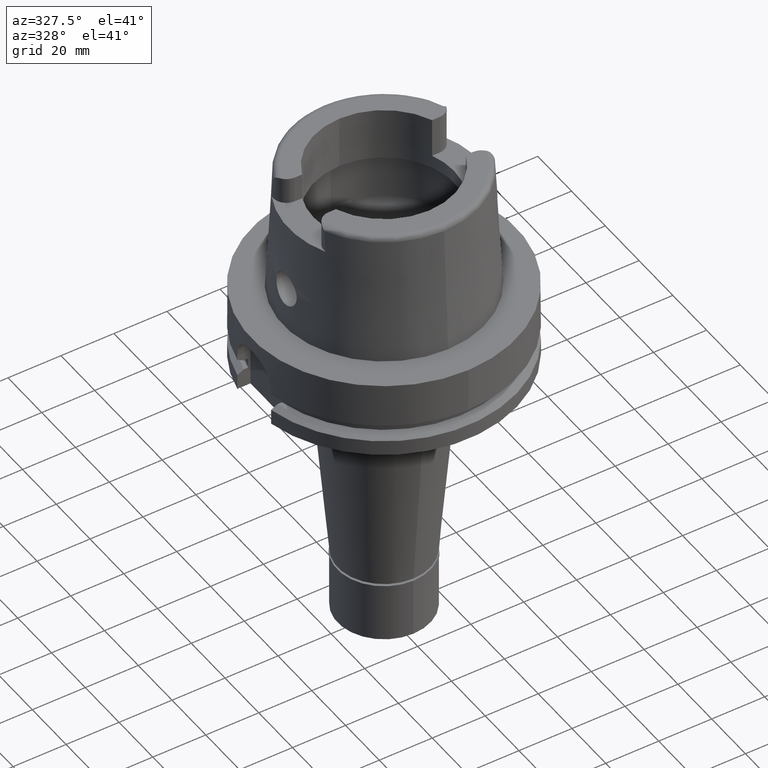
[diagram: clean part render]
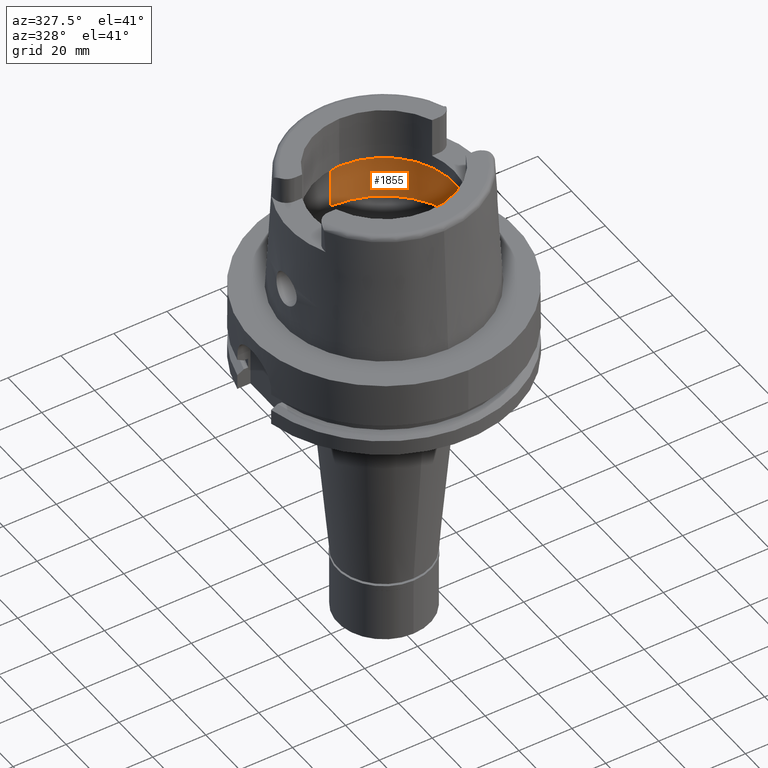
[diagram: same view with one face highlighted and labeled with its STEP entity id]
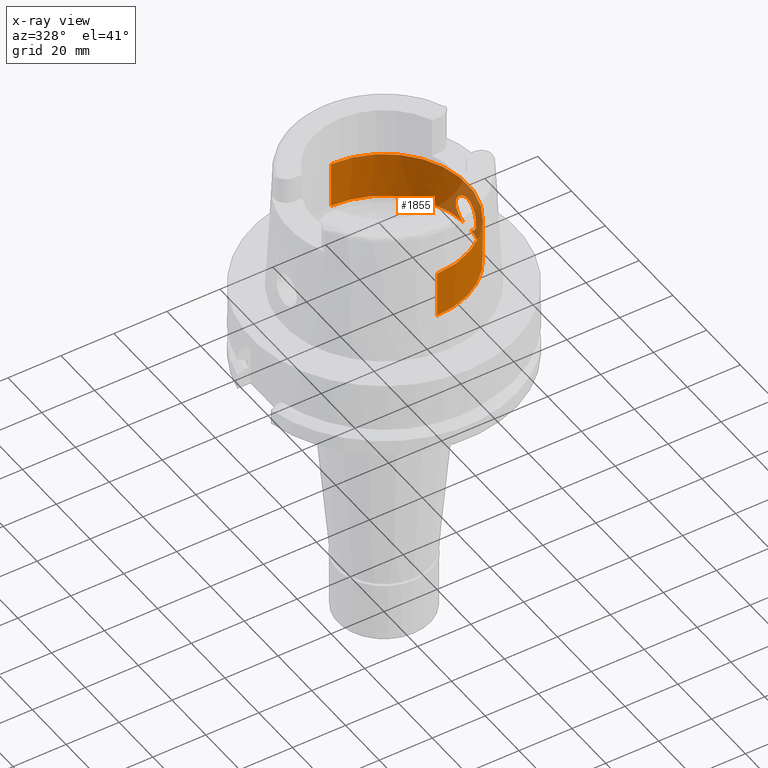
[diagram: x-ray of the same camera — body ghosted, the highlighted face saturated]
A machine part, auxiliary view. The second image highlights one B-rep face of the part: STEP entity #1855.
The next image is the same camera in x-ray: the body ghosted, the highlighted face saturated — about 9% of this face is hidden behind the body in this view.
In plain terms, the highlighted cylindrical surface (partial cylindrical patch) has radius 31.5 mm, axis along (0, 0, 1).
Its self-contained STEP definition (entity closure, byte-faithful):
#3 = CARTESIAN_POINT ( 'NONE',  ( 31.17031119197526223, -4.545501086012808223, 18.91645000060465520 ) ) ;
#8 = CIRCLE ( 'NONE', #812, 31.50000000000000000 ) ;
#27 = CARTESIAN_POINT ( 'NONE',  ( 30.99215120401441226, -5.635695294002070810, 12.91319782179499143 ) ) ;
#29 = CARTESIAN_POINT ( 'NONE',  ( 31.27262970898830829, 3.777914963720333752, 19.66127384653621135 ) ) ;
#57 = CARTESIAN_POINT ( 'NONE',  ( 30.94472926339530261, -5.888557821736129405, 16.15138554890312506 ) ) ;
#60 = CARTESIAN_POINT ( 'NONE',  ( 31.34095733376927129, 3.161114423872149803, 20.10315793481018076 ) ) ;
#81 = CARTESIAN_POINT ( 'NONE',  ( 31.17413923485180760, -4.519162591770683690, 18.94680684842914431 ) ) ;
#83 = CARTESIAN_POINT ( 'NONE',  ( 31.44082095187959069, 1.928438204758639918, 20.68172307507292729 ) ) ;
#107 = CARTESIAN_POINT ( 'NONE',  ( 31.04577119502284432, -5.330223052384129190, 12.24523325699272291 ) ) ;
#109 = CARTESIAN_POINT ( 'NONE',  ( 30.93385035905123459, 5.945437057969418682, 14.19243826237474870 ) ) ;
#134 = CIRCLE ( 'NONE', #3307, 31.49999999999998934 ) ;
#143 = CARTESIAN_POINT ( 'NONE',  ( 30.94815008401284473, 5.870543718424765522, 16.23968043950892337 ) ) ;
#169 = EDGE_CURVE ( 'NONE', #1660, #5512, #3357, .T. ) ;
#172 = CARTESIAN_POINT ( 'NONE',  ( 31.22689124291107277, 4.138834973746982726, 10.65600749535185976 ) ) ;
#218 = CARTESIAN_POINT ( 'NONE',  ( 31.43293454810337906, -2.052824328815974209, 20.63795588805198378 ) ) ;
#226 = CARTESIAN_POINT ( 'NONE',  ( 31.27380116047299197, 3.781254425368883343, 10.32171892724830720 ) ) ;
#256 = CARTESIAN_POINT ( 'NONE',  ( 31.03366758779950985, 5.400350290465067538, 12.38468889613174184 ) ) ;
#283 = CARTESIAN_POINT ( 'NONE',  ( 31.22259808345871335, 4.171282953279622951, 10.68700173368331541 ) ) ;
#324 = CIRCLE ( 'NONE', #4218, 31.50000000000000000 ) ;
#337 = B_SPLINE_CURVE_WITH_KNOTS ( 'NONE', 3,
 ( #2281, #2693, #1381, #2663, #452, #2175, #5320, #1322, #83, #2602, #2229, #3058, #4780, #3107, #3957, #1748, #60, #3906, #477, #1780, #1831, #3932, #898, #1806, #29, #4439, #3480, #1443, #4355, #4808, #2634, #5291, #1415, #4014, #2201, #3562, #4411, #3170, #3505, #3083, #4900, #4870, #4328, #4837, #143, #532, #2255, #4385, #5207, #5235, #1351, #922, #3530, #510, #5261, #3985, #109, #3139, #985, #1865, #3593, #4103, #3263, #256, #2866, #4993, #1104, #1132, #4586, #2839, #2012, #3624, #4929, #4166, #703, #2435, #1470, #2408, #283, #172, #1923, #4554, #226, #5349, #3289, #1501, #5461 ),
 .UNSPECIFIED., .F., .F.,
 ( 4, 2, 2, 1, 1, 1, 1, 2, 2, 2, 2, 2, 1, 1, 2, 2, 2, 2, 1, 1, 1, 2, 2, 2, 2, 1, 1, 1, 2, 2, 2, 2, 1, 1, 2, 2, 2, 2, 1, 1, 1, 1, 1, 2, 2, 2, 2, 2, 1, 1, 2, 2, 2, 4 ),
 ( 0.0000000000000000000, 0.06249999999998752387, 0.09374999999998129274, 0.1093749999999782119, 0.1171874999999766714, 0.1210937499999759082, 0.1230468749999754086, 0.1240234374999752559, 0.1249999999999751032, 0.1874999999999561462, 0.2187499999999466260, 0.2343749999999420186, 0.2421874999999397426, 0.2460937499999384104, 0.2480468749999377442, 0.2499999999999370781, 0.3124999999999215072, 0.3437499999999137357, 0.3593749999999100719, 0.3671874999999082956, 0.3710937499999076850, 0.3730468749999073519, 0.3749999999999070188, 0.4374999999998907541, 0.4687499999998826494, 0.4843749999998785971, 0.4921874999998769318, 0.4960937499998764322, 0.4980468749998765432, 0.4999999999998766542, 0.5624999999998798739, 0.5937499999998815392, 0.6093749999998825384, 0.6171874999998830935, 0.6210937499998832045, 0.6249999999998833156, 0.6874999999998873124, 0.7187499999998893108, 0.7343749999998901989, 0.7421874999998906430, 0.7460937499998910871, 0.7480468749998911981, 0.7490234374998913092, 0.7495117187498914202, 0.7499999999998915312, 0.8124999999999208411, 0.8437499999999354960, 0.8593749999999428235, 0.8671874999999463762, 0.8710937499999481526, 0.8730468749999490408, 0.8749999999999500400, 0.9374999999999749090, 1.000000000000000000 ),
 .UNSPECIFIED. ) ;
#420 = CARTESIAN_POINT ( 'NONE',  ( 31.32349044627368784, -3.327016139816068918, 10.00396716448759271 ) ) ;
#431 = CARTESIAN_POINT ( 'NONE',  ( 0.0000000000000000000, 0.0000000000000000000, 9.496624327025999790 ) ) ;
#449 = CARTESIAN_POINT ( 'NONE',  ( 31.08048768721805644, -5.123895521245723117, 18.12181252541044429 ) ) ;
#452 = CARTESIAN_POINT ( 'NONE',  ( 31.47210708726149520, 1.331194319262502868, 20.85303324317085227 ) ) ;
#475 = CARTESIAN_POINT ( 'NONE',  ( 30.92513285202262452, -5.990998303818131809, 14.52843492605604325 ) ) ;
#477 = CARTESIAN_POINT ( 'NONE',  ( 31.30793251443810732, 3.472708133037529787, 19.89384759766408095 ) ) ;
#507 = CARTESIAN_POINT ( 'NONE',  ( 31.15847339564639640, -4.626217987714041691, 18.82130347528235248 ) ) ;
#510 = CARTESIAN_POINT ( 'NONE',  ( 30.93076472047199488, 5.961603586606812222, 14.31998963140748771 ) ) ;
#530 = CARTESIAN_POINT ( 'NONE',  ( 30.93714413521197670, -5.928513529784080305, 15.93033960759058409 ) ) ;
#532 = CARTESIAN_POINT ( 'NONE',  ( 30.94740559289675019, 5.874458991075931280, 16.22099250784132352 ) ) ;
#582 = EDGE_CURVE ( 'NONE', #3573, #1130, #337, .T. ) ;
#632 = ORIENTED_EDGE ( 'NONE', *, *, #4370, .T. ) ;
#635 = DIRECTION ( 'NONE',  ( 0.0000000000000000000, 0.0000000000000000000, 1.000000000000000000 ) ) ;
#642 = CARTESIAN_POINT ( 'NONE',  ( 30.93485671710210028, -5.940164691194694591, 14.15452483245043780 ) ) ;
#667 = CARTESIAN_POINT ( 'NONE',  ( 31.27230244262201708, -3.780436819719265262, 19.65923159102702300 ) ) ;
#703 = CARTESIAN_POINT ( 'NONE',  ( 31.17837764074174700, 4.493692576353834234, 11.02288785837774299 ) ) ;
#812 = AXIS2_PLACEMENT_3D ( 'NONE', #431, #2612, #5432 ) ;
#869 = CARTESIAN_POINT ( 'NONE',  ( 30.92535790156224351, -5.990439746950856126, 15.37895740400832700 ) ) ;
#896 = CARTESIAN_POINT ( 'NONE',  ( 31.07983944647303431, -5.127831645670361205, 18.11534555723795137 ) ) ;
#898 = CARTESIAN_POINT ( 'NONE',  ( 31.27633961782045446, 3.747054440934458164, 19.68612216709384910 ) ) ;
#901 = ORIENTED_EDGE ( 'NONE', *, *, #2546, .T. ) ;
#920 = CARTESIAN_POINT ( 'NONE',  ( 31.07730391008680826, -5.143206990781245658, 18.08993017221684951 ) ) ;
#922 = CARTESIAN_POINT ( 'NONE',  ( 30.92596729227039987, 5.986849103784448012, 14.59401428938924639 ) ) ;
#954 = CARTESIAN_POINT ( 'NONE',  ( 30.93763131133988509, -5.925716708545103906, 14.05734351181804520 ) ) ;
#982 = CARTESIAN_POINT ( 'NONE',  ( 31.09274163123410517, -5.049446526737045637, 18.24380893087151279 ) ) ;
#985 = CARTESIAN_POINT ( 'NONE',  ( 30.95596026581969440, 5.831099790510092085, 13.54621060278716271 ) ) ;
#1098 = CARTESIAN_POINT ( 'NONE',  ( 31.38257674724467705, -2.721826895291738602, 20.34984309788706369 ) ) ;
#1104 = CARTESIAN_POINT ( 'NONE',  ( 31.04450833015870970, 5.337560623508435853, 12.25947007014658041 ) ) ;
#1130 = VERTEX_POINT ( 'NONE', #1735 ) ;
#1132 = CARTESIAN_POINT ( 'NONE',  ( 31.04518637296249750, 5.333616321999609333, 12.25181056293940074 ) ) ;
#1232 = CARTESIAN_POINT ( 'NONE',  ( 0.0000000000000000000, 31.50000000000000000, 9.496624327025999790 ) ) ;
#1235 = CARTESIAN_POINT ( 'NONE',  ( 31.24965425755245718, -3.963224926752900501, 10.49470294374874335 ) ) ;
#1286 = CARTESIAN_POINT ( 'NONE',  ( 31.18535745272732385, -4.455214326801239189, 10.95196797691649593 ) ) ;
#1320 = CARTESIAN_POINT ( 'NONE',  ( 30.93371109992426327, -5.946580660232266169, 15.80341085638785259 ) ) ;
#1322 = CARTESIAN_POINT ( 'NONE',  ( 31.44525185728851113, 1.855359920438039545, 20.70622717717181871 ) ) ;
#1331 = CARTESIAN_POINT ( 'NONE',  ( 0.0000000000000000000, 31.50000000000000000, 9.496624327025999790 ) ) ;
#1332 = EDGE_CURVE ( 'NONE', #3089, #1660, #134, .T. ) ;
#1347 = CARTESIAN_POINT ( 'NONE',  ( 31.15168077247165712, -4.671722325399284337, 18.76526591877485828 ) ) ;
#1351 = CARTESIAN_POINT ( 'NONE',  ( 30.92339637940885666, 6.000469431866928716, 14.84797055532039778 ) ) ;
#1379 = CARTESIAN_POINT ( 'NONE',  ( 31.25909197826202401, -3.886849426183959011, 19.57117237993382730 ) ) ;
#1381 = CARTESIAN_POINT ( 'NONE',  ( 31.49468706424028142, 0.6599708120569094394, 20.97328199095654711 ) ) ;
#1412 = CARTESIAN_POINT ( 'NONE',  ( 31.04982474277023741, -5.307469616298147841, 17.79989007103002052 ) ) ;
#1415 = CARTESIAN_POINT ( 'NONE',  ( 31.08534032521854940, 5.094302500672890588, 18.16999860791047183 ) ) ;
#1443 = CARTESIAN_POINT ( 'NONE',  ( 31.15638286426266035, 4.639231411888206758, 18.80881759288466881 ) ) ;
#1470 = CARTESIAN_POINT ( 'NONE',  ( 31.20455911265993265, 4.305281895409219572, 10.82056165811378179 ) ) ;
#1501 = CARTESIAN_POINT ( 'NONE',  ( 31.39148161422680161, 2.622849782999482571, 9.597684065041438117 ) ) ;
#1522 = CARTESIAN_POINT ( 'NONE',  ( 31.42879091633660948, -2.115653907550723467, 20.61485385876137855 ) ) ;
#1660 = VERTEX_POINT ( 'NONE', #2300 ) ;
#1683 = CARTESIAN_POINT ( 'NONE',  ( 31.47898427258244425, -1.327307154785381860, 20.89339780453388329 ) ) ;
#1684 = CARTESIAN_POINT ( 'NONE',  ( 31.23701903051127360, -4.061603068650537551, 10.58371648194555448 ) ) ;
#1716 = CARTESIAN_POINT ( 'NONE',  ( 31.19152020456590435, -4.399086532833892171, 19.08380142408086044 ) ) ;
#1735 = CARTESIAN_POINT ( 'NONE',  ( 31.40918884336000616, 2.390158196043999705, 9.496624327025999790 ) ) ;
#1744 = CARTESIAN_POINT ( 'NONE',  ( 31.04512673387543131, -5.333967409412548655, 12.25249204491694144 ) ) ;
#1748 = CARTESIAN_POINT ( 'NONE',  ( 31.35599069628352353, 3.007110047818155163, 20.19486942992246625 ) ) ;
#1778 = CARTESIAN_POINT ( 'NONE',  ( 31.06109520242466360, -5.240598573608543198, 17.92203373093762053 ) ) ;
#1780 = CARTESIAN_POINT ( 'NONE',  ( 31.29468542968399802, 3.590219946365988513, 19.80756510702899931 ) ) ;
#1804 = CARTESIAN_POINT ( 'NONE',  ( 31.20788939825305874, -4.280543847210465103, 19.20789029880401699 ) ) ;
#1806 = CARTESIAN_POINT ( 'NONE',  ( 31.27398797411060016, 3.766652806907395679, 19.67038377229020085 ) ) ;
#1829 = CARTESIAN_POINT ( 'NONE',  ( 30.94648753527460627, -5.879665295164920202, 13.80158998531339876 ) ) ;
#1831 = CARTESIAN_POINT ( 'NONE',  ( 31.28793863337762815, 3.649030735920465673, 19.76328496363661813 ) ) ;
#1855 = ADVANCED_FACE ( 'NONE', ( #4179 ), #1971, .F. ) ;
#1865 = CARTESIAN_POINT ( 'NONE',  ( 30.98389285015210604, 5.680213258480004690, 13.05990092191873053 ) ) ;
#1923 = CARTESIAN_POINT ( 'NONE',  ( 31.22976840841694823, 4.117023664491056500, 10.63533025689559608 ) ) ;
#1946 = CARTESIAN_POINT ( 'NONE',  ( 31.34169869548175669, -3.171647523855206874, 20.10463546829709003 ) ) ;
#1971 = CYLINDRICAL_SURFACE ( 'NONE', #5029, 31.50000000000000000 ) ;
#1977 = CARTESIAN_POINT ( 'NONE',  ( 0.0000000000000000000, -31.50000000000000000, 27.11662432702999936 ) ) ;
#2003 = VECTOR ( 'NONE', #4632, 1000.000000000000000 ) ;
#2012 = CARTESIAN_POINT ( 'NONE',  ( 31.06176795040713046, 5.237076624416971526, 12.06530452873377968 ) ) ;
#2022 = DIRECTION ( 'NONE',  ( 0.0000000000000000000, 1.000000000000000000, 0.0000000000000000000 ) ) ;
#2144 = CARTESIAN_POINT ( 'NONE',  ( 31.28063892109056354, -3.709067757735419413, 10.28277756556096989 ) ) ;
#2173 = CARTESIAN_POINT ( 'NONE',  ( 31.14651684049542979, -4.717020125617501947, 11.27610066345482842 ) ) ;
#2175 = CARTESIAN_POINT ( 'NONE',  ( 31.46015298180213193, 1.583082189475216950, 20.78803679123511472 ) ) ;
#2198 = CARTESIAN_POINT ( 'NONE',  ( 31.01590461137180554, -5.503868183578821238, 12.58272378536686986 ) ) ;
#2201 = CARTESIAN_POINT ( 'NONE',  ( 31.08072338724528905, 5.122449854222518084, 18.12419959106992451 ) ) ;
#2227 = CARTESIAN_POINT ( 'NONE',  ( 31.17272518454200281, -4.528909730986004689, 18.93562414094131441 ) ) ;
#2229 = CARTESIAN_POINT ( 'NONE',  ( 31.43756651930604917, 1.980575017218923373, 20.66368723474358404 ) ) ;
#2253 = CARTESIAN_POINT ( 'NONE',  ( 30.94592551859503260, -5.882255261838560401, 16.18287261762946017 ) ) ;
#2255 = CARTESIAN_POINT ( 'NONE',  ( 30.94708305892763889, 5.876155711480148369, 16.21281002137927629 ) ) ;
#2281 = CARTESIAN_POINT ( 'NONE',  ( 31.50000000000000000, 0.0000000000000000000, 21.00000000000000000 ) ) ;
#2300 = CARTESIAN_POINT ( 'NONE',  ( 0.0000000000000000000, -31.50000000000000000, 9.496624327025999790 ) ) ;
#2309 = EDGE_CURVE ( 'NONE', #3089, #3573, #2321, .T. ) ;
#2321 = B_SPLINE_CURVE_WITH_KNOTS ( 'NONE', 3,
 ( #5071, #4634, #4613, #420, #3795, #2144, #3365, #5117, #1235, #5572, #1684, #3423, #3104, #1286, #2173, #5171, #3478, #3056, #4834, #3137, #2660, #5233, #3450, #107, #3031, #2805, #1744, #2198, #27, #2690, #4408, #1829, #3904, #954, #3955, #642, #5205, #475, #2367, #869, #4749, #1320, #530, #4806, #57, #2253, #3081, #4382, #4353, #3559, #5288, #3928, #3983, #1412, #1778, #4778, #2600, #920, #4867, #896, #449, #982, #4326, #2631, #3503, #1347, #507, #4519, #3, #2227, #81, #1716, #1804, #3528, #5259, #1379, #4546, #2833, #3677, #667, #3256, #1946, #1098, #4984, #4097, #5402, #1522, #218, #4688, #5055, #5170, #1683, #4352, #3030 ),
 .UNSPECIFIED., .F., .F.,
 ( 4, 2, 2, 2, 1, 1, 2, 2, 2, 2, 2, 1, 1, 1, 1, 2, 2, 2, 2, 1, 1, 2, 2, 2, 2, 1, 1, 1, 2, 2, 2, 2, 2, 1, 1, 1, 2, 2, 2, 2, 1, 1, 2, 2, 2, 1, 1, 1, 2, 2, 2, 2, 1, 1, 1, 2, 2, 4 ),
 ( 0.0000000000000000000, 0.06249999999999993061, 0.09374999999999987510, 0.1093749999999997502, 0.1171874999999997363, 0.1210937499999997224, 0.1230468749999997224, 0.1249999999999997224, 0.1874999999999995559, 0.2187499999999993616, 0.2343749999999991951, 0.2421874999999990841, 0.2460937499999990008, 0.2480468749999988065, 0.2490234374999990286, 0.2495117187499991118, 0.2499999999999991951, 0.3125000000000175415, 0.3437500000000267009, 0.3593750000000314748, 0.3671875000000338618, 0.3710937500000348610, 0.3750000000000358047, 0.4375000000000548450, 0.4687500000000642264, 0.4843750000000691669, 0.4921875000000716649, 0.4960937500000728861, 0.4980468750000732192, 0.5000000000000734968, 0.5625000000000884848, 0.5937500000000960343, 0.6093750000000994760, 0.6171875000001014744, 0.6210937500001024736, 0.6230468750001030287, 0.6240234375001032507, 0.6250000000001034728, 0.6562500000001060263, 0.6718750000001075806, 0.6796875000001081357, 0.6835937500001081357, 0.6855468750001081357, 0.6875000000001081357, 0.7187500000001065814, 0.7343750000001058043, 0.7421875000001053602, 0.7460937500001049161, 0.7480468750001044720, 0.7500000000001039169, 0.8125000000000817124, 0.8437500000000704992, 0.8593750000000650591, 0.8671875000000623945, 0.8710937500000608402, 0.8730468750000599520, 0.8750000000000590639, 1.000000000000000000 ),
 .UNSPECIFIED. ) ;
#2367 = CARTESIAN_POINT ( 'NONE',  ( 30.92192660240158020, -6.008214292008486446, 14.86858719655094774 ) ) ;
#2408 = CARTESIAN_POINT ( 'NONE',  ( 31.21273883304840879, 4.245128436695126517, 10.75914035240594480 ) ) ;
#2422 = ORIENTED_EDGE ( 'NONE', *, *, #2309, .F. ) ;
#2435 = CARTESIAN_POINT ( 'NONE',  ( 31.18856109278634747, 4.421555451609602727, 10.94260236129000141 ) ) ;
#2477 = CARTESIAN_POINT ( 'NONE',  ( 0.0000000000000000000, -31.50000000000000000, 9.496624327025999790 ) ) ;
#2546 = EDGE_CURVE ( 'NONE', #5512, #2703, #324, .T. ) ;
#2600 = CARTESIAN_POINT ( 'NONE',  ( 31.07378452016791570, -5.164494978264693614, 18.05433663575029613 ) ) ;
#2602 = CARTESIAN_POINT ( 'NONE',  ( 31.43855102082985908, 1.964939896801055852, 20.66914671062583153 ) ) ;
#2612 = DIRECTION ( 'NONE',  ( 0.0000000000000000000, 0.0000000000000000000, -1.000000000000000000 ) ) ;
#2631 = CARTESIAN_POINT ( 'NONE',  ( 31.13011714608371605, -4.813699498546172961, 18.58269060755121060 ) ) ;
#2634 = CARTESIAN_POINT ( 'NONE',  ( 31.10503778561299626, 4.972287817729434956, 18.35995535487383279 ) ) ;
#2660 = CARTESIAN_POINT ( 'NONE',  ( 31.05223552265170639, -5.292771066870714414, 12.17371886188635344 ) ) ;
#2663 = CARTESIAN_POINT ( 'NONE',  ( 31.47874825696113277, 1.163033102873697544, 20.88865594220644084 ) ) ;
#2690 = CARTESIAN_POINT ( 'NONE',  ( 30.96438437357553752, -5.785555095892825683, 13.40115559642655185 ) ) ;
#2693 = CARTESIAN_POINT ( 'NONE',  ( 31.50000000000000000, 0.3265585545063965922, 21.00000000000000000 ) ) ;
#2703 = VERTEX_POINT ( 'NONE', #4288 ) ;
#2805 = CARTESIAN_POINT ( 'NONE',  ( 31.04514765398047160, -5.333845969316876712, 12.25225735085793666 ) ) ;
#2831 = DIRECTION ( 'NONE',  ( 0.9971171061384295209, -0.07587803796965221503, 0.0000000000000000000 ) ) ;
#2833 = CARTESIAN_POINT ( 'NONE',  ( 31.26934054450106970, -3.804430678619882489, 19.63965753490948885 ) ) ;
#2839 = CARTESIAN_POINT ( 'NONE',  ( 31.04597019497346366, 5.329054636358264041, 12.24297640778178753 ) ) ;
#2866 = CARTESIAN_POINT ( 'NONE',  ( 31.03980882188619361, 5.364843277506613717, 12.31311077706044799 ) ) ;
#3030 = CARTESIAN_POINT ( 'NONE',  ( 31.50000000000000000, 0.0000000000000000000, 21.00000000000000000 ) ) ;
#3031 = CARTESIAN_POINT ( 'NONE',  ( 31.04539650804584738, -5.332399852634610582, 12.24945199970359866 ) ) ;
#3056 = CARTESIAN_POINT ( 'NONE',  ( 31.06849755733601981, -5.198437795574388787, 12.00319038377448067 ) ) ;
#3058 = CARTESIAN_POINT ( 'NONE',  ( 31.43690759074990737, 1.990996501690468268, 20.66003210433346737 ) ) ;
#3081 = CARTESIAN_POINT ( 'NONE',  ( 30.94673375210525279, -5.877996980827358442, 16.20385467908276311 ) ) ;
#3083 = CARTESIAN_POINT ( 'NONE',  ( 30.97637793092435743, 5.721274847566130362, 16.81470329052437052 ) ) ;
#3089 = VERTEX_POINT ( 'NONE', #4728 ) ;
#3104 = CARTESIAN_POINT ( 'NONE',  ( 31.23332974422299202, -4.089911812482138309, 10.60991442627898707 ) ) ;
#3107 = CARTESIAN_POINT ( 'NONE',  ( 31.41932513164432450, 2.266822608117243121, 20.56244331168784711 ) ) ;
#3137 = CARTESIAN_POINT ( 'NONE',  ( 31.05573913488240123, -5.272509586381974422, 12.13617107671238848 ) ) ;
#3139 = CARTESIAN_POINT ( 'NONE',  ( 30.94255370987176690, 5.899904850430002234, 13.86517315590402788 ) ) ;
#3170 = CARTESIAN_POINT ( 'NONE',  ( 31.01914124581442422, 5.486438797583783611, 17.45278991694202730 ) ) ;
#3256 = CARTESIAN_POINT ( 'NONE',  ( 31.30986198905016238, -3.475047338508484351, 19.90601776490978025 ) ) ;
#3263 = CARTESIAN_POINT ( 'NONE',  ( 31.02181292628922193, 5.468405434934426879, 12.52799216226687129 ) ) ;
#3289 = CARTESIAN_POINT ( 'NONE',  ( 31.36791794294098423, 2.889982269396069725, 9.730789284868992084 ) ) ;
#3307 = AXIS2_PLACEMENT_3D ( 'NONE', #4605, #5453, #2831 ) ;
#3357 = LINE ( 'NONE', #2477, #4221 ) ;
#3365 = CARTESIAN_POINT ( 'NONE',  ( 31.27140358833658951, -3.786915706716896590, 10.34492255888219070 ) ) ;
#3379 = DIRECTION ( 'NONE',  ( 0.0000000000000000000, 4.980251297749999745E-14, 1.000000000000000000 ) ) ;
#3423 = CARTESIAN_POINT ( 'NONE',  ( 31.23445619368075654, -4.081290659436533907, 10.60190425839694583 ) ) ;
#3450 = CARTESIAN_POINT ( 'NONE',  ( 31.04665530578837007, -5.325090287760374075, 12.23531462057438546 ) ) ;
#3478 = CARTESIAN_POINT ( 'NONE',  ( 31.08611105631862159, -5.094563458742716655, 11.82763231540293880 ) ) ;
#3480 = CARTESIAN_POINT ( 'NONE',  ( 31.20651492167804975, 4.300658692424344842, 19.19792484531904719 ) ) ;
#3503 = CARTESIAN_POINT ( 'NONE',  ( 31.13845500974258584, -4.759496172185885499, 18.65459490037322965 ) ) ;
#3505 = CARTESIAN_POINT ( 'NONE',  ( 30.98608912520678160, 5.668970205316369082, 16.97283402122596030 ) ) ;
#3528 = CARTESIAN_POINT ( 'NONE',  ( 31.23245913971820897, -4.095087599325691663, 19.38606961327725031 ) ) ;
#3530 = CARTESIAN_POINT ( 'NONE',  ( 30.92776652042921626, 5.977351979744763177, 14.46726520774449654 ) ) ;
#3559 = CARTESIAN_POINT ( 'NONE',  ( 30.97631625463998972, -5.723121082243341817, 16.83387147523044902 ) ) ;
#3562 = CARTESIAN_POINT ( 'NONE',  ( 31.07990002165875865, 5.127452870692279063, 18.11598593260734802 ) ) ;
#3573 = VERTEX_POINT ( 'NONE', #4479 ) ;
#3593 = CARTESIAN_POINT ( 'NONE',  ( 30.99450750333133087, 5.621979061165223612, 12.89652063848280683 ) ) ;
#3624 = CARTESIAN_POINT ( 'NONE',  ( 31.08515355522503043, 5.104885994955811412, 11.82871324977124594 ) ) ;
#3677 = CARTESIAN_POINT ( 'NONE',  ( 31.27139051529000113, -3.787833820483547331, 19.65321714280212717 ) ) ;
#3775 = ORIENTED_EDGE ( 'NONE', *, *, #582, .F. ) ;
#3795 = CARTESIAN_POINT ( 'NONE',  ( 31.30723653982354193, -3.477907041489076256, 10.10697975473736498 ) ) ;
#3840 = ORIENTED_EDGE ( 'NONE', *, *, #4157, .F. ) ;
#3865 = CARTESIAN_POINT ( 'NONE',  ( 0.0000000000000000000, 0.0000000000000000000, 27.11662432702999936 ) ) ;
#3893 = DIRECTION ( 'NONE',  ( 0.0000000000000000000, 0.0000000000000000000, 1.000000000000000000 ) ) ;
#3904 = CARTESIAN_POINT ( 'NONE',  ( 30.94200310285149769, -5.903004121646715063, 13.92034768630435515 ) ) ;
#3906 = CARTESIAN_POINT ( 'NONE',  ( 31.31643522712944261, 3.394514820155645651, 19.94833158376141924 ) ) ;
#3928 = CARTESIAN_POINT ( 'NONE',  ( 31.02205619003950332, -5.468808140811385776, 17.47484123743452145 ) ) ;
#3932 = CARTESIAN_POINT ( 'NONE',  ( 31.27985167664405708, 3.717652702569448131, 19.70958119309452883 ) ) ;
#3955 = CARTESIAN_POINT ( 'NONE',  ( 30.93594198204534607, -5.934509262545067720, 14.11570105155219146 ) ) ;
#3957 = CARTESIAN_POINT ( 'NONE',  ( 31.39714665808947913, 2.554906909982632701, 20.43966613091743056 ) ) ;
#3983 = CARTESIAN_POINT ( 'NONE',  ( 31.04263767533599605, -5.349579771800857309, 17.71848701910032275 ) ) ;
#3985 = CARTESIAN_POINT ( 'NONE',  ( 30.93327021357185558, 5.948473982463292842, 14.21507685153891565 ) ) ;
#4014 = CARTESIAN_POINT ( 'NONE',  ( 31.08256779702218964, 5.111220426814605311, 18.14253740508825530 ) ) ;
#4097 = CARTESIAN_POINT ( 'NONE',  ( 31.41205711845747928, -2.351866752457096421, 20.52043483149151726 ) ) ;
#4103 = CARTESIAN_POINT ( 'NONE',  ( 31.01238517070280309, 5.521743028048788027, 12.65092094017211899 ) ) ;
#4157 = EDGE_CURVE ( 'NONE', #4641, #2703, #4660, .T. ) ;
#4166 = CARTESIAN_POINT ( 'NONE',  ( 31.14927296822133229, 4.695267837756109230, 11.25871201816809553 ) ) ;
#4179 = FACE_OUTER_BOUND ( 'NONE', #5570, .T. ) ;
#4218 = AXIS2_PLACEMENT_3D ( 'NONE', #3865, #3893, #5085 ) ;
#4221 = VECTOR ( 'NONE', #3379, 1000.000000000000000 ) ;
#4288 = CARTESIAN_POINT ( 'NONE',  ( 0.0000000000000000000, 31.50000000000000000, 27.11662432702999936 ) ) ;
#4326 = CARTESIAN_POINT ( 'NONE',  ( 31.10654148958870024, -4.964545520253959232, 18.37383864230102404 ) ) ;
#4328 = CARTESIAN_POINT ( 'NONE',  ( 30.95203070973728288, 5.850153015844041349, 16.33353508497506823 ) ) ;
#4352 = CARTESIAN_POINT ( 'NONE',  ( 31.50000000000000711, -0.6497119907458901444, 21.00000000000000355 ) ) ;
#4353 = CARTESIAN_POINT ( 'NONE',  ( 30.95932458897737050, -5.811659716753878158, 16.52211634762239001 ) ) ;
#4355 = CARTESIAN_POINT ( 'NONE',  ( 31.14017679977107989, 4.746526605229261619, 18.67424298281662942 ) ) ;
#4370 = EDGE_CURVE ( 'NONE', #4641, #1130, #8, .T. ) ;
#4382 = CARTESIAN_POINT ( 'NONE',  ( 30.94719037729683819, -5.875591168736000292, 16.21553218104006788 ) ) ;
#4385 = CARTESIAN_POINT ( 'NONE',  ( 30.93366359708575786, 5.946791103596523520, 15.86747180553873093 ) ) ;
#4408 = CARTESIAN_POINT ( 'NONE',  ( 30.95643931019543871, -5.827550643155940513, 13.56255237058024399 ) ) ;
#4411 = CARTESIAN_POINT ( 'NONE',  ( 31.04640070990000211, 5.330486805312899534, 17.78039104386640901 ) ) ;
#4439 = CARTESIAN_POINT ( 'NONE',  ( 31.23933979314087139, 4.052853576208470088, 19.43762230101543054 ) ) ;
#4478 = ORIENTED_EDGE ( 'NONE', *, *, #1332, .T. ) ;
#4479 = CARTESIAN_POINT ( 'NONE',  ( 31.50000000000000000, 0.0000000000000000000, 21.00000000000000000 ) ) ;
#4512 = CARTESIAN_POINT ( 'NONE',  ( 0.0000000000000000000, 0.0000000000000000000, -137.2150000000000034 ) ) ;
#4519 = CARTESIAN_POINT ( 'NONE',  ( 31.16671267085141039, -4.570169801256699138, 18.88775686057400804 ) ) ;
#4546 = CARTESIAN_POINT ( 'NONE',  ( 31.26626571293434509, -3.829271477383422440, 19.61925142962072499 ) ) ;
#4554 = CARTESIAN_POINT ( 'NONE',  ( 31.23138275654980589, 4.104745348574290631, 10.62378639632126642 ) ) ;
#4586 = CARTESIAN_POINT ( 'NONE',  ( 31.04563903811538239, 5.330982323992235372, 12.24670457205289331 ) ) ;
#4605 = CARTESIAN_POINT ( 'NONE',  ( 0.0000000000000000000, 0.0000000000000000000, 9.496624327025999790 ) ) ;
#4613 = CARTESIAN_POINT ( 'NONE',  ( 31.36781864750867044, -2.891047728324827482, 9.731284313515608630 ) ) ;
#4632 = DIRECTION ( 'NONE',  ( 0.0000000000000000000, -4.980251297749999745E-14, 1.000000000000000000 ) ) ;
#4634 = CARTESIAN_POINT ( 'NONE',  ( 31.39145942417800228, -2.623141383558320605, 9.597810709397030848 ) ) ;
#4641 = VERTEX_POINT ( 'NONE', #1331 ) ;
#4660 = LINE ( 'NONE', #1232, #2003 ) ;
#4688 = CARTESIAN_POINT ( 'NONE',  ( 31.43467009532108136, -2.025989789830483279, 20.64760616237482438 ) ) ;
#4707 = ORIENTED_EDGE ( 'NONE', *, *, #169, .T. ) ;
#4728 = CARTESIAN_POINT ( 'NONE',  ( 31.40918884336000616, -2.390158196043999705, 9.496624327025999790 ) ) ;
#4749 = CARTESIAN_POINT ( 'NONE',  ( 30.92787511354782737, -5.977261136425614296, 15.54910064488853294 ) ) ;
#4778 = CARTESIAN_POINT ( 'NONE',  ( 31.06685289687764495, -5.206236761050066164, 17.98311501537779122 ) ) ;
#4780 = CARTESIAN_POINT ( 'NONE',  ( 31.43650914024648202, 1.997268075250514530, 20.65782109881994799 ) ) ;
#4806 = CARTESIAN_POINT ( 'NONE',  ( 30.94205066672184046, -5.902669482082164798, 16.07782111270098824 ) ) ;
#4808 = CARTESIAN_POINT ( 'NONE',  ( 31.11662463500397280, 4.898524280232088302, 18.46581216365058253 ) ) ;
#4834 = CARTESIAN_POINT ( 'NONE',  ( 31.06310626434978772, -5.229808019163945332, 12.05846947252242352 ) ) ;
#4837 = CARTESIAN_POINT ( 'NONE',  ( 30.94928212747513641, 5.864592485771090935, 16.26775282681341395 ) ) ;
#4867 = CARTESIAN_POINT ( 'NONE',  ( 31.07882370111072490, -5.133993782042820975, 18.10518005488995286 ) ) ;
#4870 = CARTESIAN_POINT ( 'NONE',  ( 30.95795646432920378, 5.819021109829392913, 16.46619169571680175 ) ) ;
#4900 = CARTESIAN_POINT ( 'NONE',  ( 30.96377040838088845, 5.788337368179618636, 16.58167126503697020 ) ) ;
#4929 = CARTESIAN_POINT ( 'NONE',  ( 31.13179743135886213, 4.809879875445664865, 11.40913857797312225 ) ) ;
#4984 = CARTESIAN_POINT ( 'NONE',  ( 31.39505659651824843, -2.572715473765451843, 20.42282646700770599 ) ) ;
#4993 = CARTESIAN_POINT ( 'NONE',  ( 31.04293291476241734, 5.346717166595582604, 12.27734580851133472 ) ) ;
#5029 = AXIS2_PLACEMENT_3D ( 'NONE', #4512, #635, #2022 ) ;
#5055 = CARTESIAN_POINT ( 'NONE',  ( 31.43581817236218967, -2.008121022454808280, 20.65398443161691944 ) ) ;
#5071 = CARTESIAN_POINT ( 'NONE',  ( 31.40918884336000616, -2.390158196043999705, 9.496624327025999790 ) ) ;
#5085 = DIRECTION ( 'NONE',  ( 0.0000000000000000000, -1.000000000000000000, 0.0000000000000000000 ) ) ;
#5117 = CARTESIAN_POINT ( 'NONE',  ( 31.25699639944123831, -3.904346106924553528, 10.44382829389751244 ) ) ;
#5170 = CARTESIAN_POINT ( 'NONE',  ( 31.43629607626550282, -2.000642845713064499, 20.65663758610615375 ) ) ;
#5171 = CARTESIAN_POINT ( 'NONE',  ( 31.09977288233890746, -5.012321090544483937, 11.69756702280977656 ) ) ;
#5205 = CARTESIAN_POINT ( 'NONE',  ( 30.93437663603948806, -5.942669292653157243, 14.17227499305427330 ) ) ;
#5207 = CARTESIAN_POINT ( 'NONE',  ( 30.92613101736885639, 5.986418043017549095, 15.52763457764014099 ) ) ;
#5233 = CARTESIAN_POINT ( 'NONE',  ( 31.04846289192943587, -5.314608991221065892, 12.21517861270444349 ) ) ;
#5235 = CARTESIAN_POINT ( 'NONE',  ( 30.92305249544272527, 6.002381185307388733, 15.01788615637209823 ) ) ;
#5259 = CARTESIAN_POINT ( 'NONE',  ( 31.24474799818438697, -4.000449843649660941, 19.47317163799244710 ) ) ;
#5261 = CARTESIAN_POINT ( 'NONE',  ( 30.93224232774552007, 5.953858312533323982, 14.25702068446653215 ) ) ;
#5288 = CARTESIAN_POINT ( 'NONE',  ( 31.00964148918344421, -5.538819504805839955, 17.31317495460307754 ) ) ;
#5291 = CARTESIAN_POINT ( 'NONE',  ( 31.09185095239387664, 5.054312582853562219, 18.23375335982836631 ) ) ;
#5320 = CARTESIAN_POINT ( 'NONE',  ( 31.45367784134496603, 1.708936134786227301, 20.75264935421270351 ) ) ;
#5349 = CARTESIAN_POINT ( 'NONE',  ( 31.30907771606406698, 3.469090423188804895, 10.09265950706344306 ) ) ;
#5402 = CARTESIAN_POINT ( 'NONE',  ( 31.42012756643431004, -2.242142455303948179, 20.56627399202293915 ) ) ;
#5432 = DIRECTION ( 'NONE',  ( 0.0000000000000000000, 1.000000000000000000, 0.0000000000000000000 ) ) ;
#5453 = DIRECTION ( 'NONE',  ( 0.0000000000000000000, 0.0000000000000000000, -1.000000000000000000 ) ) ;
#5461 = CARTESIAN_POINT ( 'NONE',  ( 31.40918884336000616, 2.390158196043999705, 9.496624327025999790 ) ) ;
#5512 = VERTEX_POINT ( 'NONE', #1977 ) ;
#5570 = EDGE_LOOP ( 'NONE', ( #4478, #4707, #901, #3840, #632, #3775, #2422 ) ) ;
#5572 = CARTESIAN_POINT ( 'NONE',  ( 31.24084596732689789, -4.032075830435272401, 10.55662203190600579 ) ) ;